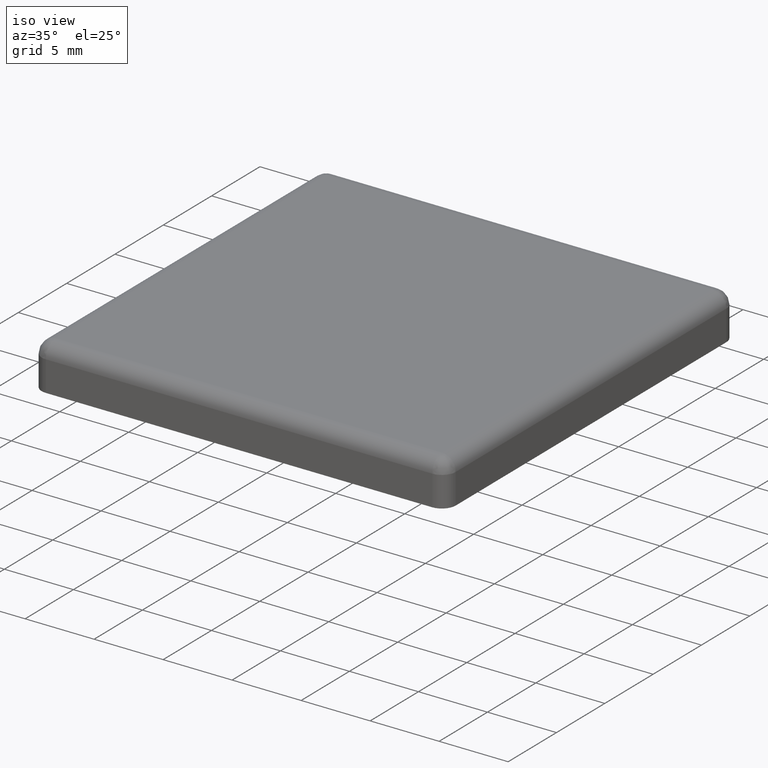
[diagram: clean part render]
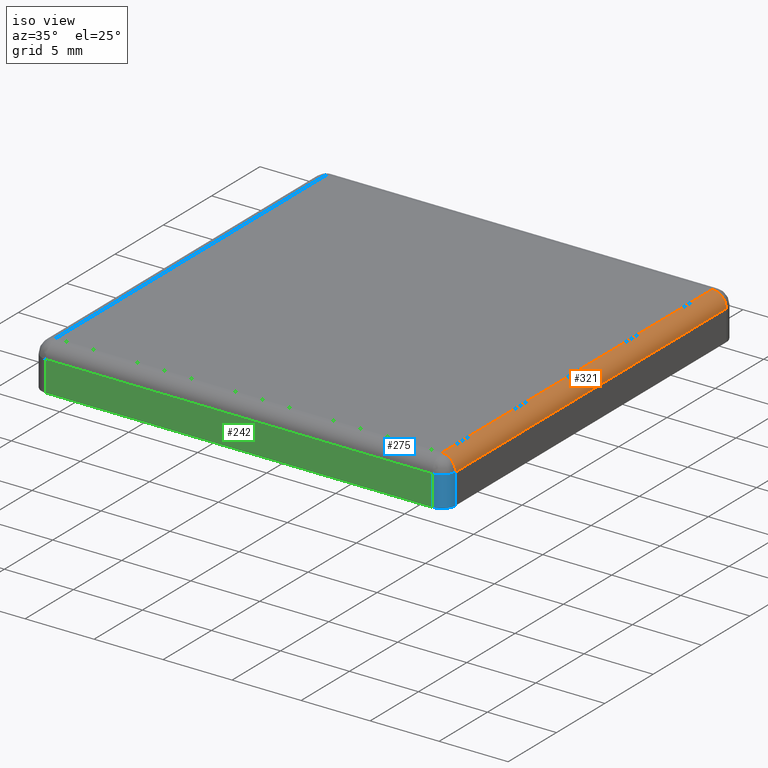
[diagram: same view with three faces highlighted in distinct colors, each labeled with its STEP entity id]
A machine part, iso view with three faces highlighted in distinct colors.
Their STEP definitions:

[orange] entity #321 — the highlighted cylindrical surface (edge-blend (fillet) strip) has radius 1 mm, axis along (0, -1, 0).
#17=CARTESIAN_POINT('',(15.0,14.000000000033310,2.200000000000000));
#18=VERTEX_POINT('',#17);
#49=CARTESIAN_POINT('',(14.0,-13.999999999966697,3.200000000000000));
#50=VERTEX_POINT('',#49);
#51=CARTESIAN_POINT('',(14.0,14.000000000033310,3.200000000000000));
#52=VERTEX_POINT('',#51);
#53=CARTESIAN_POINT('',(14.0,-13.999999999966697,3.200000000000000));
#54=DIRECTION('',(0.0,1.0,0.0));
#55=VECTOR('',#54,28.000000000000007);
#56=LINE('',#53,#55);
#57=EDGE_CURVE('',#50,#52,#56,.T.);
#250=CARTESIAN_POINT('',(15.0,-13.999999999966697,2.200000000000000));
#251=VERTEX_POINT('',#250);
#288=CARTESIAN_POINT('',(15.0,-13.999999999966697,2.200000000000000));
#289=DIRECTION('',(0.0,1.0,0.0));
#290=VECTOR('',#289,28.000000000000007);
#291=LINE('',#288,#290);
#292=EDGE_CURVE('',#251,#18,#291,.T.);
#298=CARTESIAN_POINT('',(14.0,-13.999999999966697,2.200000000000000));
#299=DIRECTION('',(0.0,-1.0,0.0));
#300=DIRECTION('',(1.0,0.0,0.0));
#301=AXIS2_PLACEMENT_3D('',#298,#299,#300);
#302=CYLINDRICAL_SURFACE('',#301,1.0);
#303=ORIENTED_EDGE('',*,*,#292,.T.);
#304=CARTESIAN_POINT('',(14.0,14.000000000033317,2.200000000000000));
#305=DIRECTION('',(0.0,1.0,0.0));
#306=DIRECTION('',(1.0,0.0,0.0));
#307=AXIS2_PLACEMENT_3D('',#304,#305,#306);
#308=CIRCLE('',#307,1.0);
#309=EDGE_CURVE('',#52,#18,#308,.T.);
#310=ORIENTED_EDGE('',*,*,#309,.F.);
#311=ORIENTED_EDGE('',*,*,#57,.F.);
#312=CARTESIAN_POINT('',(14.0,-13.999999999966697,2.200000000000000));
#313=DIRECTION('',(0.0,-1.0,0.0));
#314=DIRECTION('',(1.0,0.0,0.0));
#315=AXIS2_PLACEMENT_3D('',#312,#313,#314);
#316=CIRCLE('',#315,1.0);
#317=EDGE_CURVE('',#251,#50,#316,.T.);
#318=ORIENTED_EDGE('',*,*,#317,.F.);
#319=EDGE_LOOP('',(#303,#310,#311,#318));
#320=FACE_OUTER_BOUND('',#319,.T.);
#321=ADVANCED_FACE('',(#320),#302,.T.);

[blue] entity #275 — the highlighted cylindrical surface (edge-blend (fillet) strip) has radius 1 mm, axis along (0, 0, -1).
#217=CARTESIAN_POINT('',(14.0,-14.999999999966697,0.0));
#218=VERTEX_POINT('',#217);
#225=CARTESIAN_POINT('',(14.0,-14.999999999966697,2.200000000000000));
#226=VERTEX_POINT('',#225);
#227=CARTESIAN_POINT('',(14.0,-14.999999999966697,0.0));
#228=DIRECTION('',(0.0,0.0,1.0));
#229=VECTOR('',#228,2.200000000000000);
#230=LINE('',#227,#229);
#231=EDGE_CURVE('',#218,#226,#230,.T.);
#243=CARTESIAN_POINT('',(14.0,-13.999999999966697,0.0));
#244=DIRECTION('',(0.0,0.0,-1.0));
#245=DIRECTION('',(1.0,0.0,0.0));
#246=AXIS2_PLACEMENT_3D('',#243,#244,#245);
#247=CYLINDRICAL_SURFACE('',#246,1.0);
#248=CARTESIAN_POINT('',(15.0,-13.999999999966697,0.0));
#249=VERTEX_POINT('',#248);
#250=CARTESIAN_POINT('',(15.0,-13.999999999966697,2.200000000000000));
#251=VERTEX_POINT('',#250);
#252=CARTESIAN_POINT('',(15.0,-13.999999999966697,0.0));
#253=DIRECTION('',(0.0,0.0,1.0));
#254=VECTOR('',#253,2.200000000000000);
#255=LINE('',#252,#254);
#256=EDGE_CURVE('',#249,#251,#255,.T.);
#257=ORIENTED_EDGE('',*,*,#256,.T.);
#258=CARTESIAN_POINT('',(14.0,-13.999999999966697,2.200000000000000));
#259=DIRECTION('',(0.0,0.0,-1.0));
#260=DIRECTION('',(1.0,0.0,0.0));
#261=AXIS2_PLACEMENT_3D('',#258,#259,#260);
#262=CIRCLE('',#261,1.0);
#263=EDGE_CURVE('',#251,#226,#262,.T.);
#264=ORIENTED_EDGE('',*,*,#263,.T.);
#265=ORIENTED_EDGE('',*,*,#231,.F.);
#266=CARTESIAN_POINT('',(14.0,-13.999999999966697,0.0));
#267=DIRECTION('',(0.0,0.0,-1.0));
#268=DIRECTION('',(1.0,0.0,0.0));
#269=AXIS2_PLACEMENT_3D('',#266,#267,#268);
#270=CIRCLE('',#269,1.0);
#271=EDGE_CURVE('',#249,#218,#270,.T.);
#272=ORIENTED_EDGE('',*,*,#271,.F.);
#273=EDGE_LOOP('',(#257,#264,#265,#272));
#274=FACE_OUTER_BOUND('',#273,.T.);
#275=ADVANCED_FACE('',(#274),#247,.T.);

[green] entity #242 — the highlighted planar face has unit normal (0, -1, 0).
#184=CARTESIAN_POINT('',(-14.0,-14.999999999966697,0.0));
#185=VERTEX_POINT('',#184);
#186=CARTESIAN_POINT('',(-14.0,-14.999999999966697,2.200000000000000));
#187=VERTEX_POINT('',#186);
#188=CARTESIAN_POINT('',(-14.0,-14.999999999966697,0.0));
#189=DIRECTION('',(0.0,0.0,1.0));
#190=VECTOR('',#189,2.200000000000000);
#191=LINE('',#188,#190);
#192=EDGE_CURVE('',#185,#187,#191,.T.);
#212=CARTESIAN_POINT('',(-15.0,-14.999999999966697,0.0));
#213=DIRECTION('',(0.0,-1.0,0.0));
#214=DIRECTION('',(1.0,0.0,0.0));
#215=AXIS2_PLACEMENT_3D('',#212,#213,#214);
#216=PLANE('',#215);
#217=CARTESIAN_POINT('',(14.0,-14.999999999966697,0.0));
#218=VERTEX_POINT('',#217);
#219=CARTESIAN_POINT('',(-14.0,-14.999999999966697,0.0));
#220=DIRECTION('',(1.0,0.0,0.0));
#221=VECTOR('',#220,28.0);
#222=LINE('',#219,#221);
#223=EDGE_CURVE('',#185,#218,#222,.T.);
#224=ORIENTED_EDGE('',*,*,#223,.T.);
#225=CARTESIAN_POINT('',(14.0,-14.999999999966697,2.200000000000000));
#226=VERTEX_POINT('',#225);
#227=CARTESIAN_POINT('',(14.0,-14.999999999966697,0.0));
#228=DIRECTION('',(0.0,0.0,1.0));
#229=VECTOR('',#228,2.200000000000000);
#230=LINE('',#227,#229);
#231=EDGE_CURVE('',#218,#226,#230,.T.);
#232=ORIENTED_EDGE('',*,*,#231,.T.);
#233=CARTESIAN_POINT('',(-14.0,-14.999999999966697,2.200000000000000));
#234=DIRECTION('',(1.0,0.0,0.0));
#235=VECTOR('',#234,28.0);
#236=LINE('',#233,#235);
#237=EDGE_CURVE('',#187,#226,#236,.T.);
#238=ORIENTED_EDGE('',*,*,#237,.F.);
#239=ORIENTED_EDGE('',*,*,#192,.F.);
#240=EDGE_LOOP('',(#224,#232,#238,#239));
#241=FACE_OUTER_BOUND('',#240,.T.);
#242=ADVANCED_FACE('',(#241),#216,.T.);